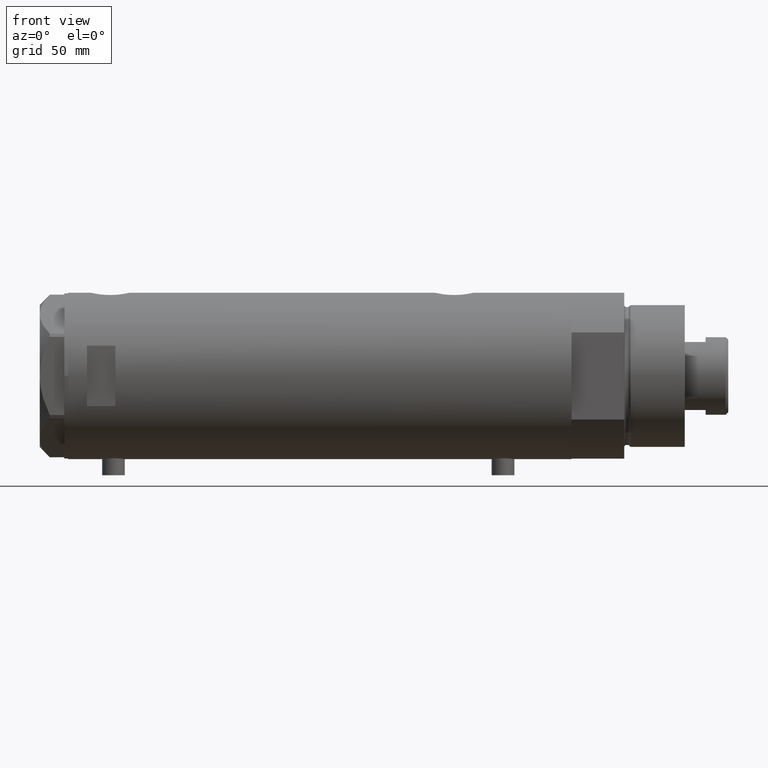
[diagram: clean part render]
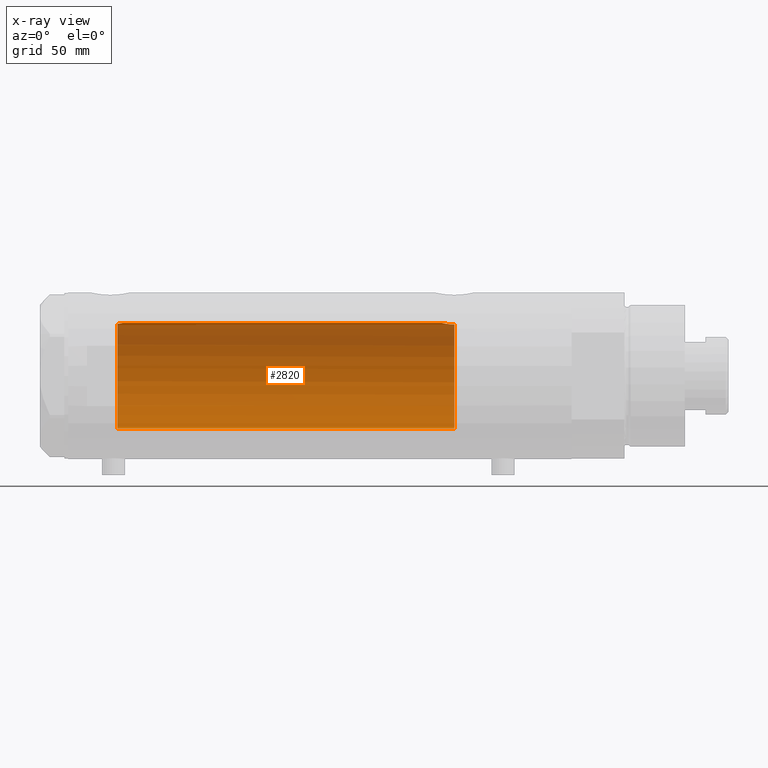
[diagram: x-ray — body ghosted, one internal face saturated and labeled with its STEP entity id]
A machine part, front view, then the same camera in x-ray: the body is ghosted and one INTERNAL B-rep face — a face not visible from any outside direction — is saturated and labeled: STEP entity #2820.
In plain terms, the highlighted cylindrical surface (partial cylindrical patch) has radius 28 mm, axis along (1, 0, -0).
Its self-contained STEP definition (entity closure, byte-faithful):
#53 = CARTESIAN_POINT ( 'NONE',  ( 28.00000000000000000, 0.000000000000000000, 104.3199999999999790 ) ) ;
#160 = EDGE_CURVE ( 'NONE', #3930, #4413, #1559, .T. ) ;
#180 = CARTESIAN_POINT ( 'NONE',  ( 27.86588799758910895, 2.744542339393450714, -65.11578757899562220 ) ) ;
#210 = CARTESIAN_POINT ( 'NONE',  ( 27.21712162367727572, 6.574850051620749980, -70.76016190408786599 ) ) ;
#267 = CARTESIAN_POINT ( 'NONE',  ( 27.46622653369042411, 5.441176343402229776, 107.1999999999999886 ) ) ;
#315 = EDGE_CURVE ( 'NONE', #2354, #1481, #2259, .T. ) ;
#367 = AXIS2_PLACEMENT_3D ( 'NONE', #3067, #4099, #3710 ) ;
#460 = ORIENTED_EDGE ( 'NONE', *, *, #3808, .F. ) ;
#565 = CARTESIAN_POINT ( 'NONE',  ( 28.00000000000000000, 0.000000000000000000, 104.3199999999999790 ) ) ;
#631 = CARTESIAN_POINT ( 'NONE',  ( 28.00000000000000711, 0.5407212781083802211, 104.3199999999999932 ) ) ;
#638 = CARTESIAN_POINT ( 'NONE',  ( 27.21605408577813279, 6.579240077698946365, -71.19999999999998863 ) ) ;
#651 = CYLINDRICAL_SURFACE ( 'NONE', #2115, 28.00000000000000000 ) ;
#757 = CARTESIAN_POINT ( 'NONE',  ( 28.00000000000000000, 8.058211040172173087E-16, -64.51999999999999602 ) ) ;
#855 = AXIS2_PLACEMENT_3D ( 'NONE', #2825, #2129, #2498 ) ;
#977 = CARTESIAN_POINT ( 'NONE',  ( 27.49602064413222635, 5.290780227724654949, 106.9788292468204105 ) ) ;
#1014 = EDGE_CURVE ( 'NONE', #4366, #1481, #2543, .T. ) ;
#1179 = CARTESIAN_POINT ( 'NONE',  ( 27.40633791352275850, 5.740289853568793177, -67.85469713442367379 ) ) ;
#1197 = CARTESIAN_POINT ( 'NONE',  ( 27.22604017942136423, 6.537820648187911310, -70.32472952793339971 ) ) ;
#1218 = CARTESIAN_POINT ( 'NONE',  ( 27.47751794615729537, 5.385218554237044764, -67.31285718566400078 ) ) ;
#1227 = EDGE_CURVE ( 'NONE', #1491, #2354, #1408, .T. ) ;
#1270 = CARTESIAN_POINT ( 'NONE',  ( 28.00000000000000000, 0.4344375524774774511, -64.51999999999999602 ) ) ;
#1408 = LINE ( 'NONE', #1445, #3877 ) ;
#1445 = CARTESIAN_POINT ( 'NONE',  ( -28.00000000000000000, 0.000000000000000000, 133.1999999999999886 ) ) ;
#1481 = VERTEX_POINT ( 'NONE', #638 ) ;
#1491 = VERTEX_POINT ( 'NONE', #3079 ) ;
#1534 = CARTESIAN_POINT ( 'NONE',  ( 27.77951318121829871, 3.511620812961475657, -65.53115835401436584 ) ) ;
#1555 = CARTESIAN_POINT ( 'NONE',  ( 27.84585502960273828, 2.940342086136629618, -65.20946914370762215 ) ) ;
#1559 = B_SPLINE_CURVE_WITH_KNOTS ( 'NONE', 3,
 ( #267, #977, #2760, #3780, #2345, #2684, #1664, #4469, #1936, #3758, #3732, #3101, #631, #565 ),
 .UNSPECIFIED., .F., .F.,
 ( 4, 2, 2, 2, 2, 2, 4 ),
 ( 0.03488855882532448244, 0.03568791961119569672, 0.03648728039706691101, 0.03808600196880930489, 0.03888536275468049142, 0.03968472354055168488, 0.04128344511229407182 ),
 .UNSPECIFIED. ) ;
#1578 = CARTESIAN_POINT ( 'NONE',  ( 27.21525044627862044, 6.582564457995942142, -70.98128103916467069 ) ) ;
#1664 = CARTESIAN_POINT ( 'NONE',  ( 27.77752716845532532, 3.554080867558366386, 105.3370280902186096 ) ) ;
#1746 = DIRECTION ( 'NONE',  ( -0.000000000000000000, -0.000000000000000000, -1.000000000000000000 ) ) ;
#1777 = ORIENTED_EDGE ( 'NONE', *, *, #4212, .T. ) ;
#1789 = CARTESIAN_POINT ( 'NONE',  ( 28.00000000000000000, 3.429011037612588487E-15, 133.1999999999999886 ) ) ;
#1907 = CARTESIAN_POINT ( 'NONE',  ( 27.50226589723265747, 5.257822516958270853, -67.13779315141977122 ) ) ;
#1936 = CARTESIAN_POINT ( 'NONE',  ( 27.87926027245440963, 2.609415915507864892, 104.8536592036424224 ) ) ;
#1979 = CIRCLE ( 'NONE', #367, 28.00000000000000000 ) ;
#2007 = ORIENTED_EDGE ( 'NONE', *, *, #315, .T. ) ;
#2115 = AXIS2_PLACEMENT_3D ( 'NONE', #3138, #4531, #4189 ) ;
#2129 = DIRECTION ( 'NONE',  ( 0.000000000000000000, 0.000000000000000000, -1.000000000000000000 ) ) ;
#2150 = LINE ( 'NONE', #1789, #4266 ) ;
#2259 = CIRCLE ( 'NONE', #855, 28.00000000000000000 ) ;
#2345 = CARTESIAN_POINT ( 'NONE',  ( 27.62184089756352989, 4.590621453796800644, 106.1784729639471720 ) ) ;
#2354 = VERTEX_POINT ( 'NONE', #4144 ) ;
#2498 = DIRECTION ( 'NONE',  ( -1.000000000000000000, 0.000000000000000000, 0.000000000000000000 ) ) ;
#2543 = B_SPLINE_CURVE_WITH_KNOTS ( 'NONE', 3,
 ( #3012, #1270, #3705, #3645, #4017, #180, #1555, #2981, #1534, #2933, #3039, #4364, #4383, #1907, #1218, #1179, #2595, #2625, #3305, #4045, #1197, #210, #1578, #4411 ),
 .UNSPECIFIED., .F., .F.,
 ( 4, 2, 2, 2, 2, 2, 2, 2, 2, 2, 2, 4 ),
 ( 0.02064447638625019343, 0.02194711032043802912, 0.02324974425462586480, 0.02390106122171979305, 0.02455237818881372130, 0.02585501212300157781, 0.02650632909009550259, 0.02715764605718943084, 0.02846027999137728387, 0.02976291392556514037, 0.03041423089265906515, 0.03106554785975299340 ),
 .UNSPECIFIED. ) ;
#2595 = CARTESIAN_POINT ( 'NONE',  ( 27.36295003163001738, 5.941130795499230288, -68.23794896005178146 ) ) ;
#2625 = CARTESIAN_POINT ( 'NONE',  ( 27.28989504668420807, 6.268149480003695651, -69.05093353430702052 ) ) ;
#2674 = ORIENTED_EDGE ( 'NONE', *, *, #1227, .T. ) ;
#2684 = CARTESIAN_POINT ( 'NONE',  ( 27.71586615897685846, 3.998795151939229076, 105.6476739562574352 ) ) ;
#2760 = CARTESIAN_POINT ( 'NONE',  ( 27.52730847012277948, 5.126288527110444804, 106.7662339946190997 ) ) ;
#2820 = ADVANCED_FACE ( 'NONE', ( #4169 ), #651, .F. ) ;
#2825 = CARTESIAN_POINT ( 'NONE',  ( 0.000000000000000000, 0.000000000000000000, -71.19999999999998863 ) ) ;
#2933 = CARTESIAN_POINT ( 'NONE',  ( 27.70785054350544030, 4.050475470458774652, -65.89631279652930118 ) ) ;
#2981 = CARTESIAN_POINT ( 'NONE',  ( 27.80267334785860101, 3.323944738624908357, -65.41709962017576174 ) ) ;
#3012 = CARTESIAN_POINT ( 'NONE',  ( 28.00000000000000000, 8.058211040172173087E-16, -64.51999999999999602 ) ) ;
#3039 = CARTESIAN_POINT ( 'NONE',  ( 27.65669575048418238, 4.382057994727793115, -66.17233761202032838 ) ) ;
#3067 = CARTESIAN_POINT ( 'NONE',  ( 0.000000000000000000, 0.000000000000000000, 107.1999999999999886 ) ) ;
#3079 = CARTESIAN_POINT ( 'NONE',  ( -28.00000000000000000, 0.000000000000000000, 107.1999999999999886 ) ) ;
#3101 = CARTESIAN_POINT ( 'NONE',  ( 27.98435453724556154, 1.072101232728052578, 104.3856609737168384 ) ) ;
#3138 = CARTESIAN_POINT ( 'NONE',  ( 0.000000000000000000, 0.000000000000000000, 133.1999999999999886 ) ) ;
#3305 = CARTESIAN_POINT ( 'NONE',  ( 27.26132124301008730, 6.389601967157237716, -69.46983701249827448 ) ) ;
#3310 = CARTESIAN_POINT ( 'NONE',  ( 27.46622653369042411, 5.441176343402229776, 107.1999999999999886 ) ) ;
#3499 = DIRECTION ( 'NONE',  ( -0.000000000000000000, -0.000000000000000000, -1.000000000000000000 ) ) ;
#3508 = ORIENTED_EDGE ( 'NONE', *, *, #1014, .F. ) ;
#3577 = ORIENTED_EDGE ( 'NONE', *, *, #160, .F. ) ;
#3645 = CARTESIAN_POINT ( 'NONE',  ( 27.94984428957576839, 1.729919005741099136, -64.73624844305088288 ) ) ;
#3705 = CARTESIAN_POINT ( 'NONE',  ( 27.98989376185445366, 0.8673308354119254604, -64.56259295538816900 ) ) ;
#3710 = DIRECTION ( 'NONE',  ( 1.000000000000000000, 0.000000000000000000, 0.000000000000000000 ) ) ;
#3732 = CARTESIAN_POINT ( 'NONE',  ( 27.93969014165221765, 1.855286977351526811, 104.5812411240566178 ) ) ;
#3758 = CARTESIAN_POINT ( 'NONE',  ( 27.92131942247208798, 2.112374604004428669, 104.6625997420270409 ) ) ;
#3780 = CARTESIAN_POINT ( 'NONE',  ( 27.59012538417910676, 4.776664836238047940, 106.3667529856984402 ) ) ;
#3808 = EDGE_CURVE ( 'NONE', #4413, #4366, #2150, .T. ) ;
#3877 = VECTOR ( 'NONE', #1746, 1000.000000000000000 ) ;
#3930 = VERTEX_POINT ( 'NONE', #3310 ) ;
#4017 = CARTESIAN_POINT ( 'NONE',  ( 27.92057377942992602, 2.145335874642060769, -64.86449057456583489 ) ) ;
#4045 = CARTESIAN_POINT ( 'NONE',  ( 27.23306259439847565, 6.508606919525675494, -70.10931986330976429 ) ) ;
#4099 = DIRECTION ( 'NONE',  ( 0.000000000000000000, 0.000000000000000000, 1.000000000000000000 ) ) ;
#4144 = CARTESIAN_POINT ( 'NONE',  ( -28.00000000000000000, 0.000000000000000000, -71.19999999999998863 ) ) ;
#4169 = FACE_OUTER_BOUND ( 'NONE', #4430, .T. ) ;
#4189 = DIRECTION ( 'NONE',  ( -1.000000000000000000, 0.000000000000000000, 0.000000000000000000 ) ) ;
#4212 = EDGE_CURVE ( 'NONE', #3930, #1491, #1979, .T. ) ;
#4266 = VECTOR ( 'NONE', #3499, 1000.000000000000000 ) ;
#4364 = CARTESIAN_POINT ( 'NONE',  ( 27.57921322802619457, 4.838471943606464265, -66.63541026849050297 ) ) ;
#4366 = VERTEX_POINT ( 'NONE', #757 ) ;
#4383 = CARTESIAN_POINT ( 'NONE',  ( 27.55311958554908358, 4.984468698502468875, -66.79897075987403809 ) ) ;
#4411 = CARTESIAN_POINT ( 'NONE',  ( 27.21605408577813279, 6.579240077698946365, -71.19999999999998863 ) ) ;
#4413 = VERTEX_POINT ( 'NONE', #53 ) ;
#4430 = EDGE_LOOP ( 'NONE', ( #460, #3577, #1777, #2674, #2007, #3508 ) ) ;
#4469 = CARTESIAN_POINT ( 'NONE',  ( 27.85549123290575935, 2.850830541327410206, 104.9637046868290895 ) ) ;
#4531 = DIRECTION ( 'NONE',  ( -0.000000000000000000, -0.000000000000000000, -1.000000000000000000 ) ) ;